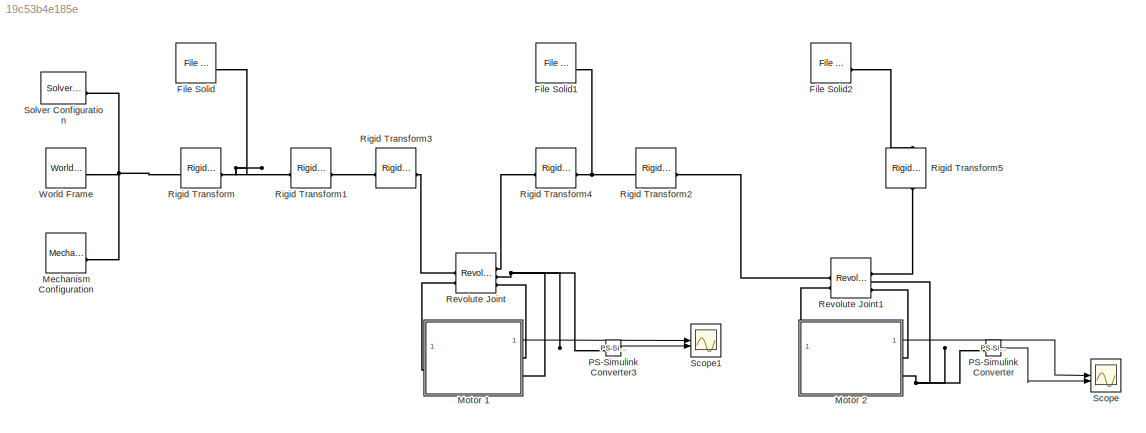
MODEL slx_19c53b4e185e
KIND model
CONFIG AbsTol = auto
CONFIG EnableMultiTasking = off
CONFIG FixedStep = auto
CONFIG MaxStep = auto
CONFIG MinStep = auto
CONFIG RelTol = 1e-3
CONFIG SampleTimeConstraint = Unconstrained
CONFIG SolverName = VariableStepAuto
CONFIG StartTime = 0.0
CONFIG StopTime = 10.0
BLOCK [Reference] File Solid  REF=sm_lib/Body Elements/File Solid
  SourceBlock = sm_lib/Body Elements/File Solid
  SourceType = File Solid
BLOCK [Reference] File Solid1  REF=sm_lib/Body Elements/File Solid
  SourceBlock = sm_lib/Body Elements/File Solid
  SourceType = File Solid
BLOCK [Reference] File Solid2  REF=sm_lib/Body Elements/File Solid
  SourceBlock = sm_lib/Body Elements/File Solid
  SourceType = File Solid
BLOCK [Reference] Mechanism Configuration  REF=sm_lib/Utilities/Mechanism
Configuration
  SourceBlock = sm_lib/Utilities/Mechanism\nConfiguration
  SourceType = Mechanism\nConfiguration
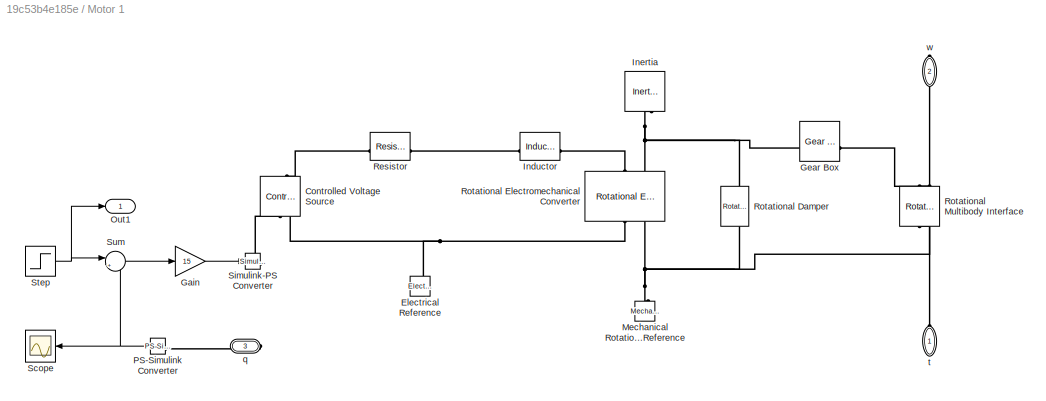
BLOCK [SubSystem] Motor 1
BLOCK [PMIOPort] Motor 1/ t
  NameLocation = right
  Side = Left
BLOCK [PMIOPort] Motor 1/ w
  NameLocation = left
  Port = 2
  Side = Right
BLOCK [Reference] Motor 1/Controlled Voltage Source  REF=fl_lib/Electrical/Electrical Sources/Controlled Voltage
Source
  NameLocation = right
  SourceBlock = fl_lib/Electrical/Electrical Sources/Controlled Voltage\nSource
  SourceType = Controlled Voltage\nSource
BLOCK [Reference] Motor 1/Electrical Reference  REF=fl_lib/Electrical/Electrical Elements/Electrical Reference
  NameLocation = right
  SourceBlock = fl_lib/Electrical/Electrical Elements/Electrical Reference
  SourceType = Electrical Reference
BLOCK [Gain] Motor 1/Gain
  Gain = 15
BLOCK [Reference] Motor 1/Gear Box  REF=fl_lib/Mechanical/Mechanisms/Gear Box
  SourceBlock = fl_lib/Mechanical/Mechanisms/Gear Box
  SourceType = Gear Box
BLOCK [Reference] Motor 1/Inductor  REF=fl_lib/Electrical/Electrical Elements/Inductor
  SourceBlock = fl_lib/Electrical/Electrical Elements/Inductor
  SourceType = Inductor
BLOCK [Reference] Motor 1/Inertia  REF=fl_lib/Mechanical/Rotational Elements/Inertia
  NameLocation = left
  SourceBlock = fl_lib/Mechanical/Rotational Elements/Inertia
  SourceType = Inertia
BLOCK [Reference] Motor 1/Mechanical Rotational Reference  REF=fl_lib/Mechanical/Rotational Elements/Mechanical
Rotational Reference
  NameLocation = right
  SourceBlock = fl_lib/Mechanical/Rotational Elements/Mechanical\nRotational Reference
  SourceType = Mechanical\nRotational Reference
BLOCK [Outport] Motor 1/Out1
BLOCK [Reference] Motor 1/PS-Simulink Converter  REF=nesl_utility/PS-Simulink
Converter
  NameLocation = top
  SourceBlock = nesl_utility/PS-Simulink\nConverter
  SourceType = PS-Simulink\nConverter
BLOCK [Reference] Motor 1/Resistor  REF=fl_lib/Electrical/Electrical Elements/Resistor
  SourceBlock = fl_lib/Electrical/Electrical Elements/Resistor
  SourceType = Resistor
BLOCK [Reference] Motor 1/Rotational Damper  REF=fl_lib/Mechanical/Rotational Elements/Rotational Damper
  NameLocation = left
  SourceBlock = fl_lib/Mechanical/Rotational Elements/Rotational Damper
  SourceType = Rotational Damper
BLOCK [Reference] Motor 1/Rotational Electromechanical Converter  REF=fl_lib/Electrical/Electrical Elements/Rotational
Electromechanical
Converter
  NameLocation = right
  SourceBlock = fl_lib/Electrical/Electrical Elements/Rotational\nElectromechanical\nConverter
  SourceType = Rotational\nElectromechanical\nConverter
BLOCK [Reference] Motor 1/Rotational Multibody Interface  REF=fl_lib/Mechanical/Multibody Interfaces/Rotational Multibody
Interface
  NameLocation = left
  SourceBlock = fl_lib/Mechanical/Multibody Interfaces/Rotational Multibody\nInterface
  SourceType = Rotational Multibody\nInterface
BLOCK [Scope] Motor 1/Scope
  Floating = off
  NameLocation = top
  NumInputPorts = 1
  ScopeSpecificationString = Simulink.scopes.TimeScopeBlockCfg('CurrentConfiguration', extmgr.ConfigurationSet(extmgr.Configuration('Core','General UI',true),extmgr.Configuration('Core','Source UI',true),extmgr.Configuration('Sources','WiredSimulink',true,'DataLoggingVariableName','ScopeData1'),extmgr.Configuration('Visuals','Time Domain',true,'SerializedDisplays',{struct('MinYLimReal','-0.11733','MaxYLimReal','1.05597','YLab...<+1380ch>
BLOCK [Reference] Motor 1/Simulink-PS Converter  REF=nesl_utility/Simulink-PS
Converter
  SourceBlock = nesl_utility/Simulink-PS\nConverter
  SourceType = Simulink-PS\nConverter
BLOCK [Step] Motor 1/Step
  After = -pi
  SampleTime = 0
  Time = 0
BLOCK [Sum] Motor 1/Sum
  Inputs = |+-
BLOCK [PMIOPort] Motor 1/q
  NameLocation = top
  Port = 3
  Side = Right
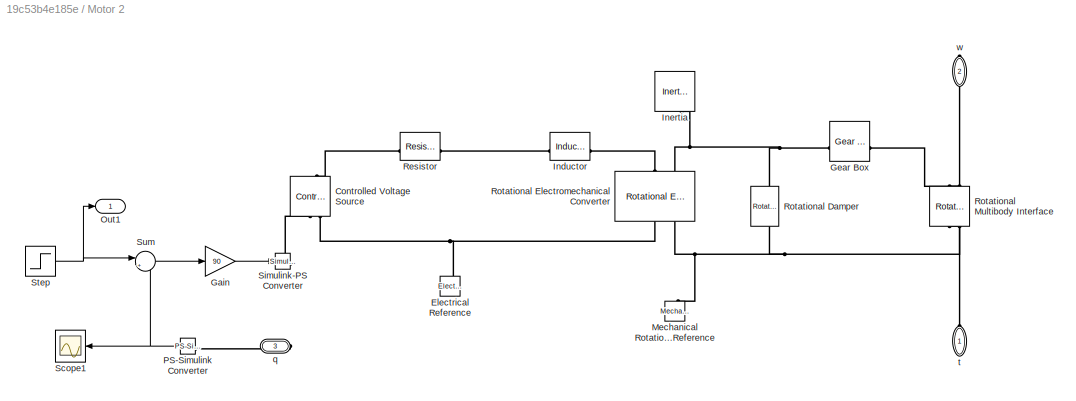
BLOCK [SubSystem] Motor 2
BLOCK [PMIOPort] Motor 2/ t
  NameLocation = right
  Side = Left
BLOCK [PMIOPort] Motor 2/ w
  NameLocation = left
  Port = 2
  Side = Right
BLOCK [Reference] Motor 2/Controlled Voltage Source  REF=fl_lib/Electrical/Electrical Sources/Controlled Voltage
Source
  NameLocation = right
  SourceBlock = fl_lib/Electrical/Electrical Sources/Controlled Voltage\nSource
  SourceType = Controlled Voltage\nSource
BLOCK [Reference] Motor 2/Electrical Reference  REF=fl_lib/Electrical/Electrical Elements/Electrical Reference
  NameLocation = right
  SourceBlock = fl_lib/Electrical/Electrical Elements/Electrical Reference
  SourceType = Electrical Reference
BLOCK [Gain] Motor 2/Gain
  Gain = 90
BLOCK [Reference] Motor 2/Gear Box  REF=fl_lib/Mechanical/Mechanisms/Gear Box
  SourceBlock = fl_lib/Mechanical/Mechanisms/Gear Box
  SourceType = Gear Box
BLOCK [Reference] Motor 2/Inductor  REF=fl_lib/Electrical/Electrical Elements/Inductor
  SourceBlock = fl_lib/Electrical/Electrical Elements/Inductor
  SourceType = Inductor
BLOCK [Reference] Motor 2/Inertia  REF=fl_lib/Mechanical/Rotational Elements/Inertia
  NameLocation = left
  SourceBlock = fl_lib/Mechanical/Rotational Elements/Inertia
  SourceType = Inertia
BLOCK [Reference] Motor 2/Mechanical Rotational Reference  REF=fl_lib/Mechanical/Rotational Elements/Mechanical
Rotational Reference
  NameLocation = right
  SourceBlock = fl_lib/Mechanical/Rotational Elements/Mechanical\nRotational Reference
  SourceType = Mechanical\nRotational Reference
BLOCK [Outport] Motor 2/Out1
BLOCK [Reference] Motor 2/PS-Simulink Converter  REF=nesl_utility/PS-Simulink
Converter
  NameLocation = top
  SourceBlock = nesl_utility/PS-Simulink\nConverter
  SourceType = PS-Simulink\nConverter
BLOCK [Reference] Motor 2/Resistor  REF=fl_lib/Electrical/Electrical Elements/Resistor
  SourceBlock = fl_lib/Electrical/Electrical Elements/Resistor
  SourceType = Resistor
BLOCK [Reference] Motor 2/Rotational Damper  REF=fl_lib/Mechanical/Rotational Elements/Rotational Damper
  NameLocation = left
  SourceBlock = fl_lib/Mechanical/Rotational Elements/Rotational Damper
  SourceType = Rotational Damper
BLOCK [Reference] Motor 2/Rotational Electromechanical Converter  REF=fl_lib/Electrical/Electrical Elements/Rotational
Electromechanical
Converter
  NameLocation = right
  SourceBlock = fl_lib/Electrical/Electrical Elements/Rotational\nElectromechanical\nConverter
  SourceType = Rotational\nElectromechanical\nConverter
BLOCK [Reference] Motor 2/Rotational Multibody Interface  REF=fl_lib/Mechanical/Multibody Interfaces/Rotational Multibody
Interface
  NameLocation = left
  SourceBlock = fl_lib/Mechanical/Multibody Interfaces/Rotational Multibody\nInterface
  SourceType = Rotational Multibody\nInterface
BLOCK [Scope] Motor 2/Scope1
  Floating = off
  NameLocation = top
  NumInputPorts = 1
  ScopeSpecificationString = Simulink.scopes.TimeScopeBlockCfg('CurrentConfiguration', extmgr.ConfigurationSet(extmgr.Configuration('Core','General UI',true),extmgr.Configuration('Core','Source UI',true),extmgr.Configuration('Sources','WiredSimulink',true),extmgr.Configuration('Visuals','Time Domain',true,'SerializedDisplays',{struct('MinYLimReal','-1.66613','MaxYLimReal','-0.71377','YLabelReal','','MinYLimMag','0.00000','Max...<+1398ch>
BLOCK [Reference] Motor 2/Simulink-PS Converter  REF=nesl_utility/Simulink-PS
Converter
  SourceBlock = nesl_utility/Simulink-PS\nConverter
  SourceType = Simulink-PS\nConverter
BLOCK [Step] Motor 2/Step
  After = pi/2
  SampleTime = 0
  Time = 0
BLOCK [Sum] Motor 2/Sum
  Inputs = |+-
BLOCK [PMIOPort] Motor 2/q
  NameLocation = top
  Port = 3
  Side = Right
BLOCK [Reference] PS-Simulink Converter  REF=nesl_utility/PS-Simulink
Converter
  SourceBlock = nesl_utility/PS-Simulink\nConverter
  SourceType = PS-Simulink\nConverter
BLOCK [Reference] PS-Simulink Converter3  REF=nesl_utility/PS-Simulink
Converter
  SourceBlock = nesl_utility/PS-Simulink\nConverter
  SourceType = PS-Simulink\nConverter
BLOCK [Reference] Revolute Joint  REF=sm_lib/Joints/Revolute Joint
  SourceBlock = sm_lib/Joints/Revolute Joint
  SourceType = Revolute Joint
BLOCK [Reference] Revolute Joint1  REF=sm_lib/Joints/Revolute Joint
  SourceBlock = sm_lib/Joints/Revolute Joint
  SourceType = Revolute Joint
BLOCK [Reference] Rigid Transform  REF=sm_lib/Frames and
Transforms/Rigid
Transform
  SourceBlock = sm_lib/Frames and\nTransforms/Rigid\nTransform
  SourceType = Rigid\nTransform
BLOCK [Reference] Rigid Transform1  REF=sm_lib/Frames and
Transforms/Rigid
Transform
  SourceBlock = sm_lib/Frames and\nTransforms/Rigid\nTransform
  SourceType = Rigid\nTransform
BLOCK [Reference] Rigid Transform2  REF=sm_lib/Frames and
Transforms/Rigid
Transform
  SourceBlock = sm_lib/Frames and\nTransforms/Rigid\nTransform
  SourceType = Rigid\nTransform
BLOCK [Reference] Rigid Transform3  REF=sm_lib/Frames and
Transforms/Rigid
Transform
  SourceBlock = sm_lib/Frames and\nTransforms/Rigid\nTransform
  SourceType = Rigid\nTransform
BLOCK [Reference] Rigid Transform4  REF=sm_lib/Frames and
Transforms/Rigid
Transform
  SourceBlock = sm_lib/Frames and\nTransforms/Rigid\nTransform
  SourceType = Rigid\nTransform
BLOCK [Reference] Rigid Transform5  REF=sm_lib/Frames and
Transforms/Rigid
Transform
  NameLocation = left
  SourceBlock = sm_lib/Frames and\nTransforms/Rigid\nTransform
  SourceType = Rigid\nTransform
BLOCK [Scope] Scope
  Floating = off
  NumInputPorts = 2
  ScopeSpecificationString = Simulink.scopes.TimeScopeBlockCfg('CurrentConfiguration', extmgr.ConfigurationSet(extmgr.Configuration('Core','General UI',true),extmgr.Configuration('Core','Source UI',true),extmgr.Configuration('Sources','WiredSimulink',true,'DataLoggingVariableName','ScopeData1'),extmgr.Configuration('Visuals','Time Domain',true,'SerializedDisplays',{struct('MinYLimReal','-1.96957','MaxYLimReal','2.01818','YLab...<+1433ch>
BLOCK [Scope] Scope1
  Floating = off
  NumInputPorts = 2
  ScopeSpecificationString = Simulink.scopes.TimeScopeBlockCfg('CurrentConfiguration', extmgr.ConfigurationSet(extmgr.Configuration('Core','General UI',true),extmgr.Configuration('Core','Source UI',true),extmgr.Configuration('Sources','WiredSimulink',true,'DataLoggingVariableName','ScopeData2'),extmgr.Configuration('Visuals','Time Domain',true,'SerializedDisplays',{struct('MinYLimReal','-0.11544','MaxYLimReal','1.03896','YLab...<+1433ch>
BLOCK [Reference] Solver Configuration  REF=nesl_utility/Solver
Configuration
  SourceBlock = nesl_utility/Solver\nConfiguration
  SourceType = Solver\nConfiguration
BLOCK [Reference] World Frame  REF=sm_lib/Frames and
Transforms/World Frame
  SourceBlock = sm_lib/Frames and\nTransforms/World Frame
  SourceType = World Frame
LINE Motor 1/Gain:1 -> Motor 1/Simulink-PS Converter:1
NET Motor 1/PS-Simulink Converter:1 -> Motor 1/Scope:1, Motor 1/Sum:2
NET Motor 1/Step:1 -> Motor 1/Out1:1, Motor 1/Sum:1
LINE Motor 1/Sum:1 -> Motor 1/Gain:1
LINE Motor 1:1 -> Scope1:1
LINE Motor 2/Gain:1 -> Motor 2/Simulink-PS Converter:1
NET Motor 2/PS-Simulink Converter:1 -> Motor 2/Scope1:1, Motor 2/Sum:2
NET Motor 2/Step:1 -> Motor 2/Out1:1, Motor 2/Sum:1
LINE Motor 2/Sum:1 -> Motor 2/Gain:1
LINE Motor 2:1 -> Scope:1
LINE PS-Simulink Converter3:1 -> Scope1:2
LINE PS-Simulink Converter:1 -> Scope:2
PNET net1: File Solid1:RConn1 -- Rigid Transform2:LConn1 -- Rigid Transform4:RConn1
PLINE File Solid2:RConn1 -- Rigid Transform5:LConn1
PNET net2: File Solid:RConn1 -- Rigid Transform1:LConn1 -- Rigid Transform:RConn1
PNET net3: Mechanism Configuration:RConn1 -- Rigid Transform:LConn1 -- Solver Configuration:RConn1 -- World Frame:RConn1
PLINE Motor 1/ t:RConn1 -- Motor 1/Rotational Multibody Interface:LConn1
PLINE Motor 1/ w:RConn1 -- Motor 1/Rotational Multibody Interface:RConn1
PLINE Motor 1/Controlled Voltage Source:LConn1 -- Motor 1/Resistor:LConn1
PLINE Motor 1/Controlled Voltage Source:RConn1 -- Motor 1/Simulink-PS Converter:RConn1
PNET net4: Motor 1/Controlled Voltage Source:RConn2 -- Motor 1/Electrical Reference:LConn1 -- Motor 1/Rotational Electromechanical Converter:RConn1
PNET net5: Motor 1/Gear Box:LConn1 -- Motor 1/Inertia:LConn1 -- Motor 1/Rotational Damper:LConn1 -- Motor 1/Rotational Electromechanical Converter:LConn2
PLINE Motor 1/Gear Box:RConn1 -- Motor 1/Rotational Multibody Interface:RConn2
PLINE Motor 1/Inductor:LConn1 -- Motor 1/Resistor:RConn1
PLINE Motor 1/Inductor:RConn1 -- Motor 1/Rotational Electromechanical Converter:LConn1
PNET net6: Motor 1/Mechanical Rotational Reference:LConn1 -- Motor 1/Rotational Damper:RConn1 -- Motor 1/Rotational Electromechanical Converter:RConn2 -- Motor 1/Rotational Multibody Interface:LConn2
PLINE Motor 1/PS-Simulink Converter:LConn1 -- Motor 1/q:RConn1
PLINE Motor 1:LConn1 -- Revolute Joint:LConn2
PLINE Motor 1:RConn1 -- Revolute Joint:RConn3
PNET net7: Motor 1:RConn2 -- PS-Simulink Converter3:LConn1 -- Revolute Joint:RConn2
PLINE Motor 2/ t:RConn1 -- Motor 2/Rotational Multibody Interface:LConn1
PLINE Motor 2/ w:RConn1 -- Motor 2/Rotational Multibody Interface:RConn1
PLINE Motor 2/Controlled Voltage Source:LConn1 -- Motor 2/Resistor:LConn1
PLINE Motor 2/Controlled Voltage Source:RConn1 -- Motor 2/Simulink-PS Converter:RConn1
PNET net8: Motor 2/Controlled Voltage Source:RConn2 -- Motor 2/Electrical Reference:LConn1 -- Motor 2/Rotational Electromechanical Converter:RConn1
PNET net9: Motor 2/Gear Box:LConn1 -- Motor 2/Inertia:LConn1 -- Motor 2/Rotational Damper:LConn1 -- Motor 2/Rotational Electromechanical Converter:LConn2
PLINE Motor 2/Gear Box:RConn1 -- Motor 2/Rotational Multibody Interface:RConn2
PLINE Motor 2/Inductor:LConn1 -- Motor 2/Resistor:RConn1
PLINE Motor 2/Inductor:RConn1 -- Motor 2/Rotational Electromechanical Converter:LConn1
PNET net10: Motor 2/Mechanical Rotational Reference:LConn1 -- Motor 2/Rotational Damper:RConn1 -- Motor 2/Rotational Electromechanical Converter:RConn2 -- Motor 2/Rotational Multibody Interface:LConn2
PLINE Motor 2/PS-Simulink Converter:LConn1 -- Motor 2/q:RConn1
PLINE Motor 2:LConn1 -- Revolute Joint1:LConn2
PLINE Motor 2:RConn1 -- Revolute Joint1:RConn3
PNET net11: Motor 2:RConn2 -- PS-Simulink Converter:LConn1 -- Revolute Joint1:RConn2
PLINE Revolute Joint1:LConn1 -- Rigid Transform2:RConn1
PLINE Revolute Joint1:RConn1 -- Rigid Transform5:RConn1
PLINE Revolute Joint:LConn1 -- Rigid Transform3:RConn1
PLINE Revolute Joint:RConn1 -- Rigid Transform4:LConn1
PLINE Rigid Transform1:RConn1 -- Rigid Transform3:LConn1
note: NET lines group one-source signal fan-out (src -> all destinations, sorted); 1:1 wires keep LINE; PNET lines group multi-terminal physical nets as a canonical sorted terminal list (undirected conserving connections); 2-terminal nets keep the pairwise PLINE form
